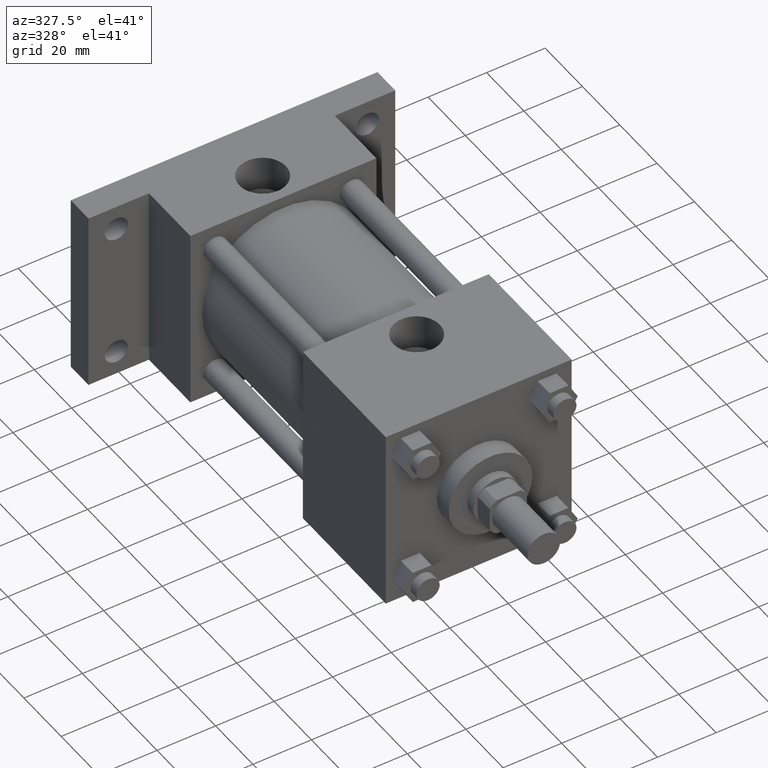
[diagram: clean part render]
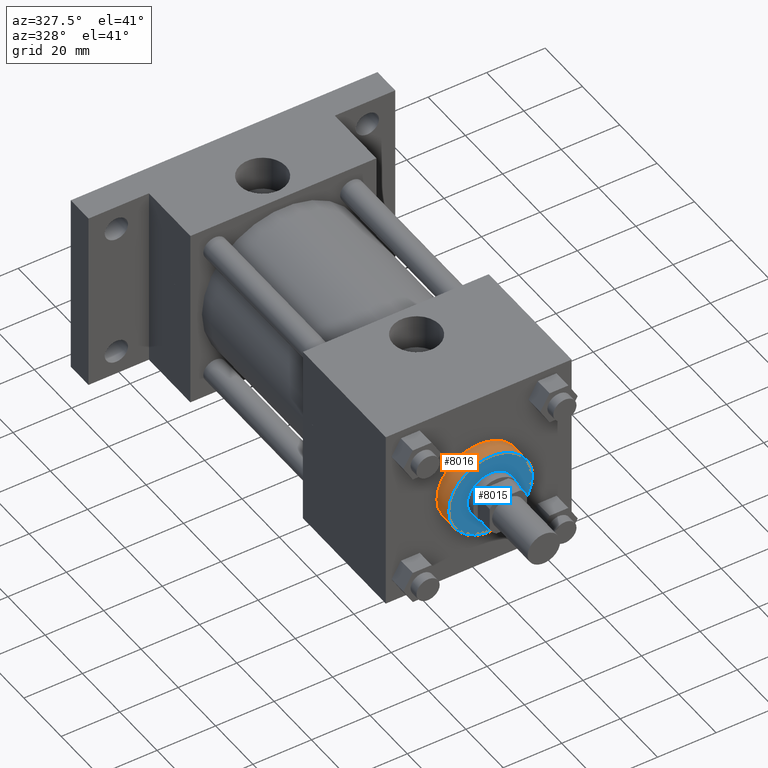
[diagram: same view with the hole feature highlighted: cylindrical wall and planar end face, labeled with their STEP entity ids]
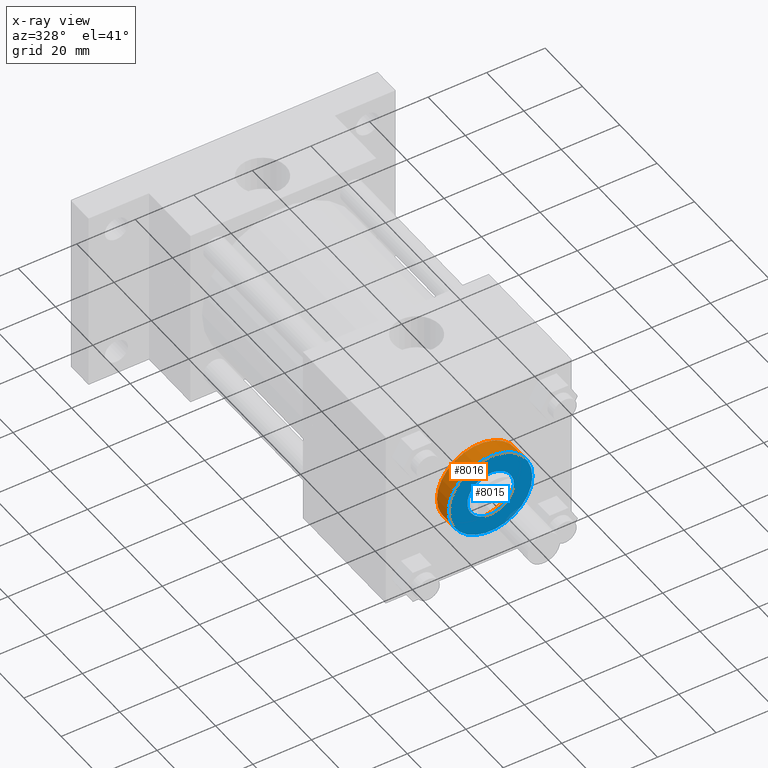
[diagram: x-ray of the same camera — body ghosted, the hole faces saturated]
A machine part, auxiliary view. The highlighted faces form one hole feature of diameter 28.575 mm: the cylindrical wall (entity #8016, orange) and its adjacent planar end face (entity #8015, blue) — they share a circular edge in the B-rep.
The next image is the same camera in x-ray (body ghosted, the hole faces saturated) — the bore reads through the body.
Wall:
#405=EDGE_CURVE('',#411,#411,#406,.T.);
#406=CIRCLE('',#407,1.428750000E+001);
#407=AXIS2_PLACEMENT_3D('',#408,#409,#410);
#408=CARTESIAN_POINT('',(0.000000000E+000,9.525000000E+000,0.000000000E+000));
#409=DIRECTION('',(0.0E+000,1.0E+000,0.0E+000));
#410=DIRECTION('',(1.0E+000,0.0E+000,0.0E+000));
#411=VERTEX_POINT('',#412);
#412=CARTESIAN_POINT('',(1.428750000E+001,9.525000000E+000,0.000000000E+000));
#419=FACE_OUTER_BOUND('',#421,.T.);
#420=FACE_BOUND('',#422,.T.);
#421=EDGE_LOOP('',(#423));
#422=EDGE_LOOP('',(#432));
#423=ORIENTED_EDGE('',*,*,#424,.F.);
#424=EDGE_CURVE('',#430,#430,#425,.T.);
#425=CIRCLE('',#426,1.428750000E+001);
#426=AXIS2_PLACEMENT_3D('',#427,#428,#429);
#427=CARTESIAN_POINT('',(0.000000000E+000,1.587500000E+001,0.000000000E+000));
#428=DIRECTION('',(0.0E+000,1.0E+000,0.0E+000));
#429=DIRECTION('',(1.0E+000,0.0E+000,0.0E+000));
#430=VERTEX_POINT('',#431);
#431=CARTESIAN_POINT('',(1.428750000E+001,1.587500000E+001,0.000000000E+000));
#432=ORIENTED_EDGE('',*,*,#405,.T.);
#433=CYLINDRICAL_SURFACE('',#434,1.428750000E+001);
#434=AXIS2_PLACEMENT_3D('',#435,#436,#437);
#435=CARTESIAN_POINT('',(0.000000000E+000,1.587500000E+001,0.000000000E+000));
#436=DIRECTION('',(0.0E+000,-1.0E+000,0.0E+000));
#437=DIRECTION('',(0.0E+000,0.0E+000,-1.0E+000));
#8016=ADVANCED_FACE('',(#419,#420),#433,.T.);
End face:
#131=EDGE_CURVE('',#137,#137,#132,.T.);
#132=CIRCLE('',#133,7.937500000E+000);
#133=AXIS2_PLACEMENT_3D('',#134,#135,#136);
#134=CARTESIAN_POINT('',(0.000000000E+000,9.525000000E+000,0.000000000E+000));
#135=DIRECTION('',(0.0E+000,1.0E+000,0.0E+000));
#136=DIRECTION('',(1.0E+000,0.0E+000,0.0E+000));
#137=VERTEX_POINT('',#138);
#138=CARTESIAN_POINT('',(7.937500000E+000,9.525000000E+000,0.000000000E+000));
#400=FACE_OUTER_BOUND('',#402,.T.);
#401=FACE_BOUND('',#403,.T.);
#402=EDGE_LOOP('',(#404));
#403=EDGE_LOOP('',(#413));
#404=ORIENTED_EDGE('',*,*,#405,.F.);
#405=EDGE_CURVE('',#411,#411,#406,.T.);
#406=CIRCLE('',#407,1.428750000E+001);
#407=AXIS2_PLACEMENT_3D('',#408,#409,#410);
#408=CARTESIAN_POINT('',(0.000000000E+000,9.525000000E+000,0.000000000E+000));
#409=DIRECTION('',(0.0E+000,1.0E+000,0.0E+000));
#410=DIRECTION('',(1.0E+000,0.0E+000,0.0E+000));
#411=VERTEX_POINT('',#412);
#412=CARTESIAN_POINT('',(1.428750000E+001,9.525000000E+000,0.000000000E+000));
#413=ORIENTED_EDGE('',*,*,#131,.T.);
#414=PLANE('',#415);
#415=AXIS2_PLACEMENT_3D('',#416,#417,#418);
#416=CARTESIAN_POINT('',(0.000000000E+000,9.525000000E+000,0.000000000E+000));
#417=DIRECTION('',(0.0E+000,1.0E+000,0.0E+000));
#418=DIRECTION('',(0.0E+000,0.0E+000,1.0E+000));
#8015=ADVANCED_FACE('',(#400,#401),#414,.F.);